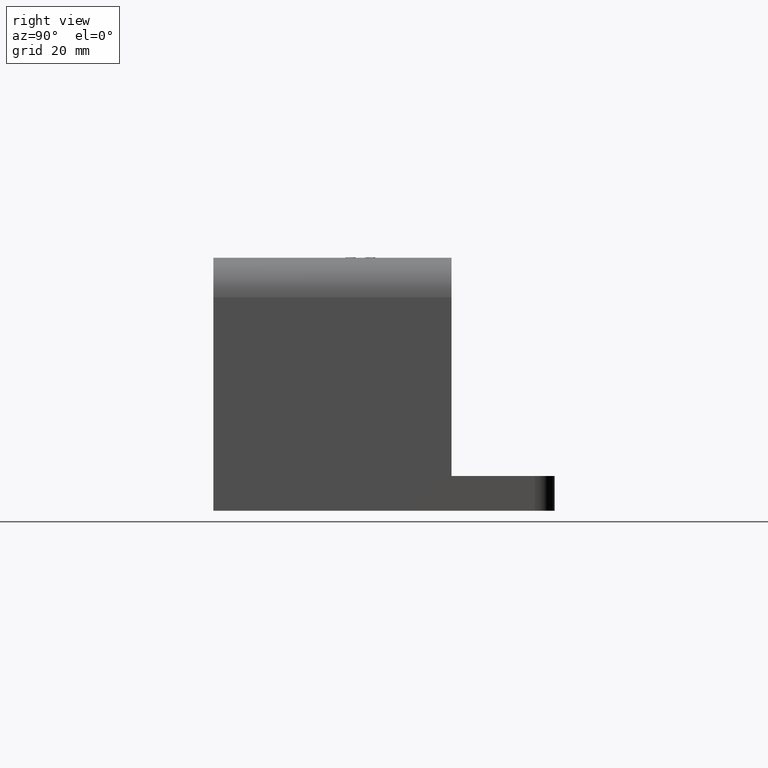
[diagram: clean part render]
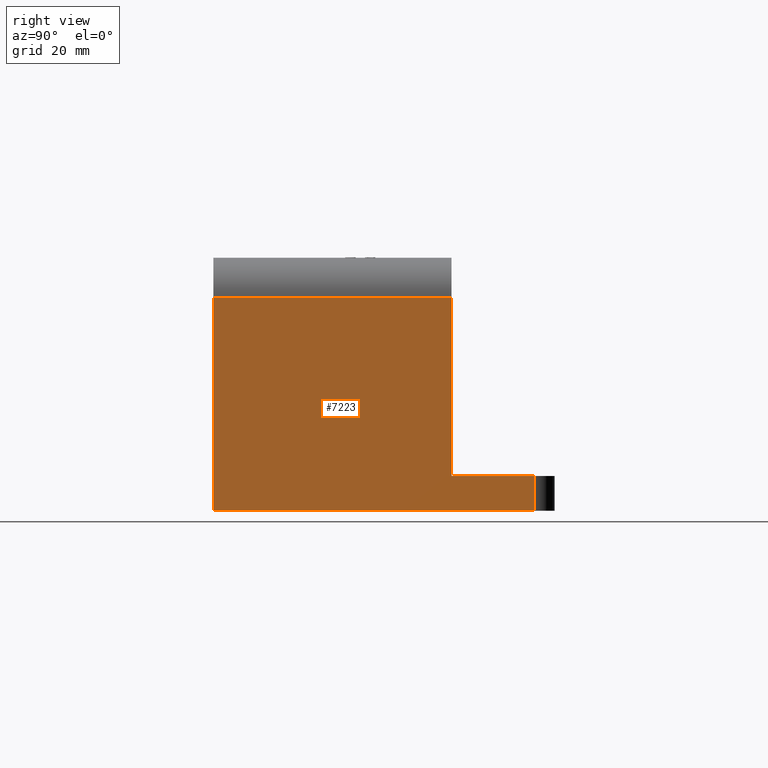
[diagram: same view with one face highlighted and labeled with its STEP entity id]
A machine part, right view. The second image highlights one B-rep face of the part: STEP entity #7223.
In plain terms, the highlighted planar face has unit normal (-1, 0, -0).
Its self-contained STEP definition (entity closure, byte-faithful):
#70 = ORIENTED_EDGE ( 'NONE', *, *, #2851, .T. ) ;
#72 = ORIENTED_EDGE ( 'NONE', *, *, #2863, .T. ) ;
#135 = EDGE_LOOP ( 'NONE', ( #1923, #1921, #70, #72, #1915, #1914 ) ) ;
#889 = DIRECTION ( 'NONE',  ( -0.0000000000000000000, -1.000000000000000000, -0.0000000000000000000 ) ) ;
#893 = CARTESIAN_POINT ( 'NONE',  ( 3.750000000000000000, 4.049999999999999800, 0.0000000000000000000 ) ) ;
#894 = DIRECTION ( 'NONE',  ( -4.066006316151462300E-016, -0.0000000000000000000, 1.000000000000000000 ) ) ;
#895 = CARTESIAN_POINT ( 'NONE',  ( 3.750000000000000000, 4.299999999999999800, 0.0000000000000000000 ) ) ;
#896 = DIRECTION ( 'NONE',  ( -0.0000000000000000000, -1.000000000000000000, -0.0000000000000000000 ) ) ;
#897 = CARTESIAN_POINT ( 'NONE',  ( 3.750000000000000000, 3.000000000000000400, -7.174332893594026000 ) ) ;
#898 = DIRECTION ( 'NONE',  ( -0.0000000000000000000, -0.0000000000000000000, 1.000000000000000000 ) ) ;
#1382 = CARTESIAN_POINT ( 'NONE',  ( 3.749999999999999100, 4.299999999999999800, 2.687499999999999600 ) ) ;
#1914 = ORIENTED_EDGE ( 'NONE', *, *, #2856, .T. ) ;
#1915 = ORIENTED_EDGE ( 'NONE', *, *, #2859, .T. ) ;
#1921 = ORIENTED_EDGE ( 'NONE', *, *, #2861, .T. ) ;
#1923 = ORIENTED_EDGE ( 'NONE', *, *, #2862, .F. ) ;
#2368 = AXIS2_PLACEMENT_3D ( 'NONE', #4864, #4870, #4871 ) ;
#2851 = EDGE_CURVE ( 'NONE', #5447, #5448, #3516, .T. ) ;
#2856 = EDGE_CURVE ( 'NONE', #5444, #5446, #3523, .T. ) ;
#2859 = EDGE_CURVE ( 'NONE', #5443, #5444, #3509, .T. ) ;
#2861 = EDGE_CURVE ( 'NONE', #5445, #5447, #3525, .T. ) ;
#2862 = EDGE_CURVE ( 'NONE', #5445, #5446, #3532, .T. ) ;
#2863 = EDGE_CURVE ( 'NONE', #5448, #5443, #3534, .T. ) ;
#3509 = LINE ( 'NONE', #1382, #3526 ) ;
#3513 = VECTOR ( 'NONE', #6614, 39.37007874015748100 ) ;
#3516 = LINE ( 'NONE', #6602, #3517 ) ;
#3517 = VECTOR ( 'NONE', #6603, 39.37007874015748100 ) ;
#3523 = LINE ( 'NONE', #6601, #3513 ) ;
#3525 = LINE ( 'NONE', #893, #3528 ) ;
#3526 = VECTOR ( 'NONE', #889, 39.37007874015748100 ) ;
#3528 = VECTOR ( 'NONE', #894, 39.37007874015748100 ) ;
#3532 = LINE ( 'NONE', #895, #3533 ) ;
#3533 = VECTOR ( 'NONE', #896, 39.37007874015748100 ) ;
#3534 = LINE ( 'NONE', #897, #3535 ) ;
#3535 = VECTOR ( 'NONE', #898, 39.37007874015748100 ) ;
#4578 = FACE_OUTER_BOUND ( 'NONE', #135, .T. ) ;
#4854 = PLANE ( 'NONE',  #2368 ) ;
#4864 = CARTESIAN_POINT ( 'NONE',  ( 3.750000000000000000, 4.299999999999999800, 0.0000000000000000000 ) ) ;
#4870 = DIRECTION ( 'NONE',  ( -1.000000000000000000, 0.0000000000000000000, -4.066006316151462300E-016 ) ) ;
#4871 = DIRECTION ( 'NONE',  ( -4.066006316151462300E-016, 0.0000000000000000000, 1.000000000000000000 ) ) ;
#5443 = VERTEX_POINT ( 'NONE', #6280 ) ;
#5444 = VERTEX_POINT ( 'NONE', #6281 ) ;
#5445 = VERTEX_POINT ( 'NONE', #6282 ) ;
#5446 = VERTEX_POINT ( 'NONE', #6283 ) ;
#5447 = VERTEX_POINT ( 'NONE', #6284 ) ;
#5448 = VERTEX_POINT ( 'NONE', #6285 ) ;
#6280 = CARTESIAN_POINT ( 'NONE',  ( 3.750000000000000000, 3.000000000000000400, 2.687500000000000400 ) ) ;
#6281 = CARTESIAN_POINT ( 'NONE',  ( 3.749999999999999100, 0.0000000000000000000, 2.687499999999999600 ) ) ;
#6282 = CARTESIAN_POINT ( 'NONE',  ( 3.750000000000000000, 4.049999999999999800, 0.0000000000000000000 ) ) ;
#6283 = CARTESIAN_POINT ( 'NONE',  ( 3.750000000000000000, 0.0000000000000000000, 0.0000000000000000000 ) ) ;
#6284 = CARTESIAN_POINT ( 'NONE',  ( 3.749999999999999600, 4.049999999999999800, 0.4374999999999998900 ) ) ;
#6285 = CARTESIAN_POINT ( 'NONE',  ( 3.750000000000000000, 3.000000000000000400, 0.4374999999999998900 ) ) ;
#6601 = CARTESIAN_POINT ( 'NONE',  ( 3.750000000000000000, 0.0000000000000000000, 0.0000000000000000000 ) ) ;
#6602 = CARTESIAN_POINT ( 'NONE',  ( 3.749999999999999600, 4.299999999999999800, 0.4374999999999998900 ) ) ;
#6603 = DIRECTION ( 'NONE',  ( 4.202843067175790200E-016, -1.000000000000000000, 0.0000000000000000000 ) ) ;
#6614 = DIRECTION ( 'NONE',  ( 4.066006316151462300E-016, -0.0000000000000000000, -1.000000000000000000 ) ) ;
#7223 = ADVANCED_FACE ( 'NONE', ( #4578 ), #4854, .F. ) ;